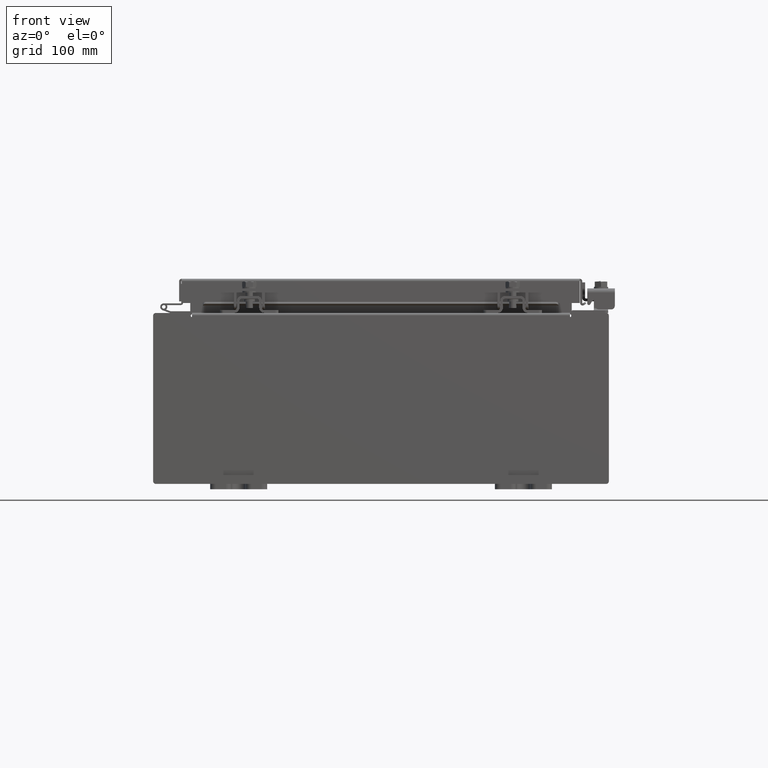
[diagram: clean part render]
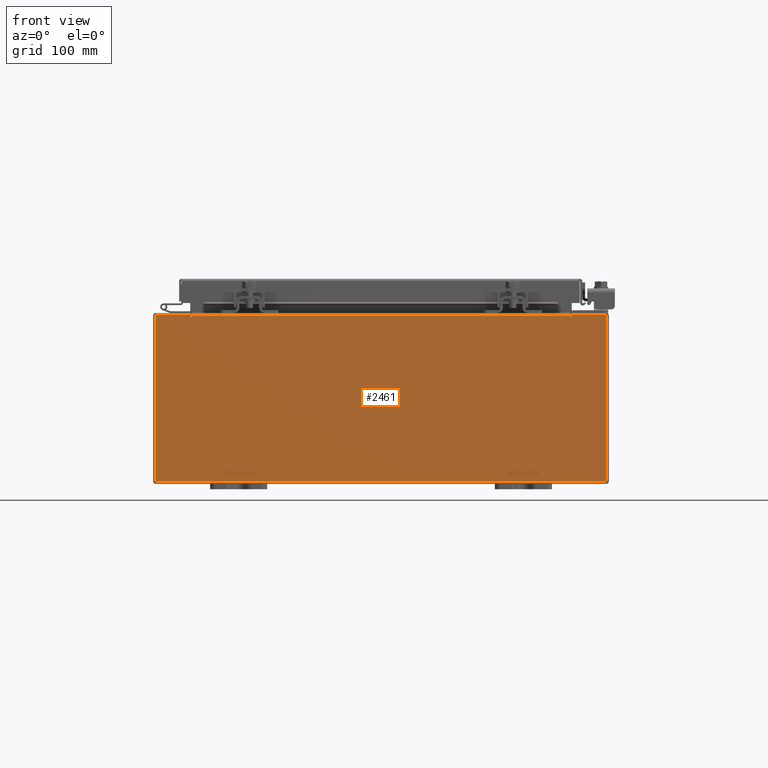
[diagram: same view with one face highlighted and labeled with its STEP entity id]
A machine part, front view. The second image highlights one B-rep face of the part: STEP entity #2461.
In plain terms, the highlighted planar face has unit normal (-0, 1, -0).
Its self-contained STEP definition (entity closure, byte-faithful):
#293 = CARTESIAN_POINT ( 'NONE',  ( -6.674550000000000900, 0.0000000000000000000, 2.874950000000000600 ) ) ;
#320 = CARTESIAN_POINT ( 'NONE',  ( -6.674550000000000900, -0.0000000000000000000, 0.0000000000000000000 ) ) ;
#471 = CARTESIAN_POINT ( 'NONE',  ( 6.637199999999999100, 0.0000000000000000000, 2.912300000000000600 ) ) ;
#581 = DIRECTION ( 'NONE',  ( 0.0000000000000000000, 0.0000000000000000000, -1.000000000000000000 ) ) ;
#752 = CARTESIAN_POINT ( 'NONE',  ( 6.674549999999999100, 0.0000000000000000000, 2.874950000000000600 ) ) ;
#1105 = CARTESIAN_POINT ( 'NONE',  ( 6.674549999999999100, 0.0000000000000000000, 2.925300000000000500 ) ) ;
#1109 = ORIENTED_EDGE ( 'NONE', *, *, #19417, .F. ) ;
#1123 = CARTESIAN_POINT ( 'NONE',  ( 6.655874999999998200, 0.0000000000000000000, 2.874950000000000600 ) ) ;
#1281 = DIRECTION ( 'NONE',  ( -1.000000000000000000, -0.0000000000000000000, -0.0000000000000000000 ) ) ;
#1324 = DIRECTION ( 'NONE',  ( -0.0000000000000000000, -0.0000000000000000000, 1.000000000000000000 ) ) ;
#1463 = VECTOR ( 'NONE', #14822, 39.37007874015748100 ) ;
#1698 = VERTEX_POINT ( 'NONE', #9949 ) ;
#1902 = DIRECTION ( 'NONE',  ( 1.000000000000000000, 0.0000000000000000000, 0.0000000000000000000 ) ) ;
#2067 = EDGE_CURVE ( 'NONE', #9619, #15690, #23312, .T. ) ;
#2378 = DIRECTION ( 'NONE',  ( 0.0000000000000000000, 0.0000000000000000000, 1.000000000000000000 ) ) ;
#2461 = ADVANCED_FACE ( 'NONE', ( #24553 ), #14484, .F. ) ;
#2539 = DIRECTION ( 'NONE',  ( 0.0000000000000000000, 0.0000000000000000000, 1.000000000000000000 ) ) ;
#2986 = VERTEX_POINT ( 'NONE', #3109 ) ;
#3109 = CARTESIAN_POINT ( 'NONE',  ( -7.925300000000000000, 0.0000000000000000000, -2.925299999999999600 ) ) ;
#3154 = DIRECTION ( 'NONE',  ( 0.0000000000000000000, 0.0000000000000000000, -1.000000000000000000 ) ) ;
#3407 = ORIENTED_EDGE ( 'NONE', *, *, #18348, .F. ) ;
#3474 = CARTESIAN_POINT ( 'NONE',  ( -6.637200000000000900, -0.0000000000000000000, 0.0000000000000000000 ) ) ;
#3725 = CARTESIAN_POINT ( 'NONE',  ( -6.674550000000000900, 0.0000000000000000000, 2.925300000000000500 ) ) ;
#3830 = LINE ( 'NONE', #5853, #24631 ) ;
#3968 = VECTOR ( 'NONE', #13200, 39.37007874015748100 ) ;
#4832 = CARTESIAN_POINT ( 'NONE',  ( -6.637200000000000900, -1.707404996040164500E-016, 2.912300000000000600 ) ) ;
#4886 = ORIENTED_EDGE ( 'NONE', *, *, #16023, .T. ) ;
#5280 = VERTEX_POINT ( 'NONE', #8267 ) ;
#5853 = CARTESIAN_POINT ( 'NONE',  ( -7.925300000000000000, 0.0000000000000000000, 2.925300000000000500 ) ) ;
#6843 = LINE ( 'NONE', #4832, #1463 ) ;
#7457 = ORIENTED_EDGE ( 'NONE', *, *, #24634, .T. ) ;
#7587 = AXIS2_PLACEMENT_3D ( 'NONE', #1123, #15171, #3154 ) ;
#7945 = CARTESIAN_POINT ( 'NONE',  ( -6.655875000000000900, 0.0000000000000000000, 2.874950000000000600 ) ) ;
#8076 = ORIENTED_EDGE ( 'NONE', *, *, #20841, .T. ) ;
#8266 = EDGE_CURVE ( 'NONE', #2986, #1698, #25550, .T. ) ;
#8267 = CARTESIAN_POINT ( 'NONE',  ( -6.637200000000000900, -0.0000000000000000000, 2.874950000000000600 ) ) ;
#9209 = CIRCLE ( 'NONE', #25217, 0.01867500000000003900 ) ;
#9215 = CARTESIAN_POINT ( 'NONE',  ( -7.925300000000000000, 0.0000000000000000000, 2.925300000000000500 ) ) ;
#9395 = VERTEX_POINT ( 'NONE', #752 ) ;
#9481 = VECTOR ( 'NONE', #1281, 39.37007874015748100 ) ;
#9495 = VERTEX_POINT ( 'NONE', #1105 ) ;
#9498 = CARTESIAN_POINT ( 'NONE',  ( 7.925300000000000000, 0.0000000000000000000, 2.925300000000000500 ) ) ;
#9501 = VECTOR ( 'NONE', #1324, 39.37007874015748100 ) ;
#9619 = VERTEX_POINT ( 'NONE', #9498 ) ;
#9949 = CARTESIAN_POINT ( 'NONE',  ( -7.925300000000000000, 0.0000000000000000000, 2.925300000000000500 ) ) ;
#9975 = DIRECTION ( 'NONE',  ( 0.0000000000000000000, 0.0000000000000000000, -1.000000000000000000 ) ) ;
#10493 = VECTOR ( 'NONE', #13955, 39.37007874015748100 ) ;
#11058 = CIRCLE ( 'NONE', #7587, 0.01867500000000003900 ) ;
#11333 = CARTESIAN_POINT ( 'NONE',  ( -7.925300000000000000, 0.0000000000000000000, -2.925299999999999600 ) ) ;
#11377 = CARTESIAN_POINT ( 'NONE',  ( -7.925300000000000000, 0.0000000000000000000, 2.925300000000000500 ) ) ;
#11699 = CARTESIAN_POINT ( 'NONE',  ( 7.925300000000000000, 0.0000000000000000000, -2.925299999999999600 ) ) ;
#11730 = LINE ( 'NONE', #20529, #21154 ) ;
#12183 = EDGE_CURVE ( 'NONE', #25429, #5280, #21202, .T. ) ;
#12387 = ORIENTED_EDGE ( 'NONE', *, *, #25562, .F. ) ;
#12539 = EDGE_LOOP ( 'NONE', ( #14601, #1109, #23902, #4886, #3407, #12387, #19158, #7457, #26084, #8076, #21667, #16144 ) ) ;
#13200 = DIRECTION ( 'NONE',  ( 1.000000000000000000, 0.0000000000000000000, 0.0000000000000000000 ) ) ;
#13545 = CARTESIAN_POINT ( 'NONE',  ( 6.637199999999997300, 0.0000000000000000000, 2.874950000000000600 ) ) ;
#13941 = CARTESIAN_POINT ( 'NONE',  ( 7.925300000000000000, 0.0000000000000000000, 2.925300000000000500 ) ) ;
#13955 = DIRECTION ( 'NONE',  ( -2.170286390200002500E-014, 0.0000000000000000000, -1.000000000000000000 ) ) ;
#13973 = EDGE_CURVE ( 'NONE', #9495, #9395, #16417, .T. ) ;
#14484 = PLANE ( 'NONE',  #15535 ) ;
#14601 = ORIENTED_EDGE ( 'NONE', *, *, #17718, .F. ) ;
#14657 = LINE ( 'NONE', #9215, #3968 ) ;
#14822 = DIRECTION ( 'NONE',  ( 1.000000000000000000, 0.0000000000000000000, 0.0000000000000000000 ) ) ;
#15171 = DIRECTION ( 'NONE',  ( -0.0000000000000000000, 1.000000000000000000, -0.0000000000000000000 ) ) ;
#15478 = DIRECTION ( 'NONE',  ( 0.0000000000000000000, 0.0000000000000000000, -1.000000000000000000 ) ) ;
#15535 = AXIS2_PLACEMENT_3D ( 'NONE', #15874, #16975, #16051 ) ;
#15690 = VERTEX_POINT ( 'NONE', #11699 ) ;
#15874 = CARTESIAN_POINT ( 'NONE',  ( 0.0000000000000000000, 0.0000000000000000000, 0.0000000000000000000 ) ) ;
#16023 = EDGE_CURVE ( 'NONE', #25429, #16491, #6843, .T. ) ;
#16051 = DIRECTION ( 'NONE',  ( 0.0000000000000000000, -0.0000000000000000000, -1.000000000000000000 ) ) ;
#16144 = ORIENTED_EDGE ( 'NONE', *, *, #21500, .T. ) ;
#16417 = LINE ( 'NONE', #21979, #10493 ) ;
#16456 = VERTEX_POINT ( 'NONE', #293 ) ;
#16491 = VERTEX_POINT ( 'NONE', #471 ) ;
#16975 = DIRECTION ( 'NONE',  ( 0.0000000000000000000, -1.000000000000000000, 0.0000000000000000000 ) ) ;
#17718 = EDGE_CURVE ( 'NONE', #16456, #25189, #18354, .T. ) ;
#18348 = EDGE_CURVE ( 'NONE', #23261, #16491, #11730, .T. ) ;
#18354 = LINE ( 'NONE', #320, #22444 ) ;
#19158 = ORIENTED_EDGE ( 'NONE', *, *, #13973, .F. ) ;
#19417 = EDGE_CURVE ( 'NONE', #5280, #16456, #9209, .T. ) ;
#20529 = CARTESIAN_POINT ( 'NONE',  ( 6.637199999999999100, 0.0000000000000000000, 0.0000000000000000000 ) ) ;
#20572 = VECTOR ( 'NONE', #15478, 39.37007874015748100 ) ;
#20841 = EDGE_CURVE ( 'NONE', #15690, #2986, #25530, .T. ) ;
#21154 = VECTOR ( 'NONE', #2539, 39.37007874015748100 ) ;
#21202 = LINE ( 'NONE', #3474, #20572 ) ;
#21500 = EDGE_CURVE ( 'NONE', #1698, #25189, #14657, .T. ) ;
#21667 = ORIENTED_EDGE ( 'NONE', *, *, #8266, .T. ) ;
#21979 = CARTESIAN_POINT ( 'NONE',  ( 6.674549999999936900, -0.0000000000000000000, -1.448568502570928700E-013 ) ) ;
#21987 = DIRECTION ( 'NONE',  ( -0.0000000000000000000, 1.000000000000000000, -0.0000000000000000000 ) ) ;
#22444 = VECTOR ( 'NONE', #2378, 39.37007874015748100 ) ;
#22666 = VECTOR ( 'NONE', #581, 39.37007874015748100 ) ;
#23261 = VERTEX_POINT ( 'NONE', #13545 ) ;
#23312 = LINE ( 'NONE', #13941, #22666 ) ;
#23902 = ORIENTED_EDGE ( 'NONE', *, *, #12183, .F. ) ;
#24553 = FACE_OUTER_BOUND ( 'NONE', #12539, .T. ) ;
#24631 = VECTOR ( 'NONE', #1902, 39.37007874015748100 ) ;
#24634 = EDGE_CURVE ( 'NONE', #9495, #9619, #3830, .T. ) ;
#24821 = CARTESIAN_POINT ( 'NONE',  ( -6.637200000000000900, -1.707404996040164500E-016, 2.912300000000000600 ) ) ;
#25189 = VERTEX_POINT ( 'NONE', #3725 ) ;
#25217 = AXIS2_PLACEMENT_3D ( 'NONE', #7945, #21987, #9975 ) ;
#25429 = VERTEX_POINT ( 'NONE', #24821 ) ;
#25530 = LINE ( 'NONE', #11333, #9481 ) ;
#25550 = LINE ( 'NONE', #11377, #9501 ) ;
#25562 = EDGE_CURVE ( 'NONE', #9395, #23261, #11058, .T. ) ;
#26084 = ORIENTED_EDGE ( 'NONE', *, *, #2067, .T. ) ;